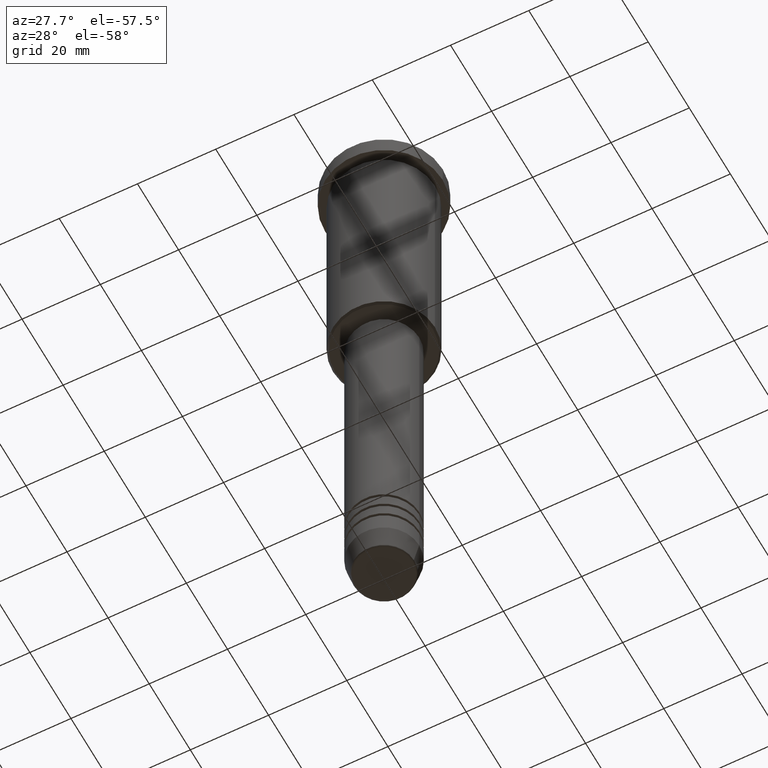
[diagram: clean part render]
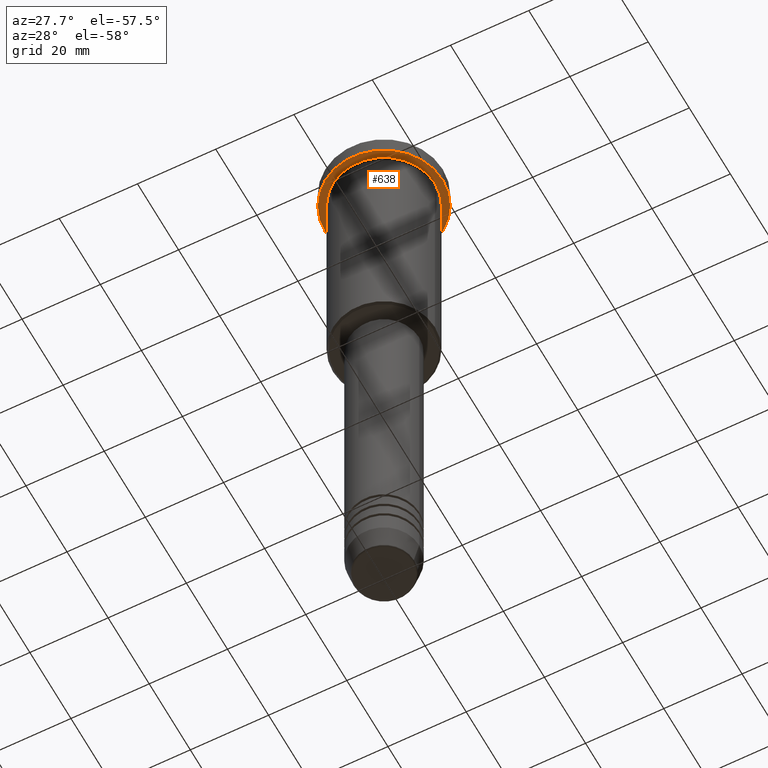
[diagram: same view with one face highlighted and labeled with its STEP entity id]
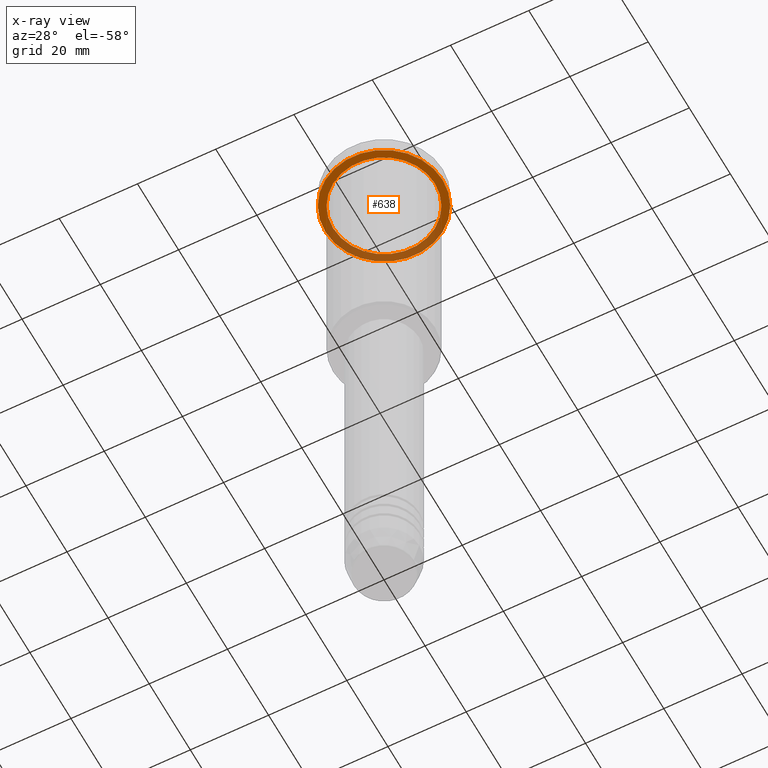
[diagram: x-ray of the same camera — body ghosted, the highlighted face saturated]
A machine part, auxiliary view. The second image highlights one B-rep face of the part: STEP entity #638.
The next image is the same camera in x-ray: the body ghosted, the highlighted face saturated — about 36% of this face is hidden behind the body in this view.
In plain terms, the highlighted planar face has unit normal (0, 0, -1).
Its self-contained STEP definition (entity closure, byte-faithful):
#16 = AXIS2_PLACEMENT_3D ( 'NONE', #723, #740, #835 ) ;
#55 = ORIENTED_EDGE ( 'NONE', *, *, #178, .T. ) ;
#88 = VERTEX_POINT ( 'NONE', #958 ) ;
#134 = AXIS2_PLACEMENT_3D ( 'NONE', #437, #1148, #336 ) ;
#139 = EDGE_CURVE ( 'NONE', #88, #1156, #384, .T. ) ;
#178 = EDGE_CURVE ( 'NONE', #206, #900, #881, .T. ) ;
#204 = CARTESIAN_POINT ( 'NONE',  ( -15.00000000000000000, 1.836970198721029589E-15, -4.999999999999999112 ) ) ;
#206 = VERTEX_POINT ( 'NONE', #457 ) ;
#248 = CARTESIAN_POINT ( 'NONE',  ( -13.00000000000000000, 0.000000000000000000, -4.999999999999999112 ) ) ;
#278 = EDGE_LOOP ( 'NONE', ( #670, #55 ) ) ;
#313 = AXIS2_PLACEMENT_3D ( 'NONE', #475, #557, #847 ) ;
#329 = AXIS2_PLACEMENT_3D ( 'NONE', #618, #1163, #519 ) ;
#336 = DIRECTION ( 'NONE',  ( 1.000000000000000000, 0.000000000000000000, 0.000000000000000000 ) ) ;
#382 = FACE_BOUND ( 'NONE', #278, .T. ) ;
#384 = CIRCLE ( 'NONE', #546, 15.00000000000000000 ) ;
#401 = ORIENTED_EDGE ( 'NONE', *, *, #521, .F. ) ;
#437 = CARTESIAN_POINT ( 'NONE',  ( 0.000000000000000000, 0.000000000000000000, -4.999999999999999112 ) ) ;
#457 = CARTESIAN_POINT ( 'NONE',  ( 13.00000000000000000, 1.592040838891559095E-15, -4.999999999999999112 ) ) ;
#470 = CARTESIAN_POINT ( 'NONE',  ( 0.000000000000000000, 0.000000000000000000, -4.999999999999999112 ) ) ;
#475 = CARTESIAN_POINT ( 'NONE',  ( 0.000000000000000000, 15.00000000000000000, -4.999999999999999112 ) ) ;
#519 = DIRECTION ( 'NONE',  ( -1.000000000000000000, 0.000000000000000000, 0.000000000000000000 ) ) ;
#521 = EDGE_CURVE ( 'NONE', #1156, #88, #1182, .T. ) ;
#546 = AXIS2_PLACEMENT_3D ( 'NONE', #470, #987, #1179 ) ;
#557 = DIRECTION ( 'NONE',  ( 0.000000000000000000, 0.000000000000000000, -1.000000000000000000 ) ) ;
#564 = ORIENTED_EDGE ( 'NONE', *, *, #139, .F. ) ;
#575 = FACE_OUTER_BOUND ( 'NONE', #784, .T. ) ;
#618 = CARTESIAN_POINT ( 'NONE',  ( 0.000000000000000000, 0.000000000000000000, -4.999999999999999112 ) ) ;
#638 = ADVANCED_FACE ( 'NONE', ( #382, #575 ), #838, .T. ) ;
#670 = ORIENTED_EDGE ( 'NONE', *, *, #897, .T. ) ;
#712 = CIRCLE ( 'NONE', #329, 13.00000000000000000 ) ;
#723 = CARTESIAN_POINT ( 'NONE',  ( 0.000000000000000000, 0.000000000000000000, -4.999999999999999112 ) ) ;
#740 = DIRECTION ( 'NONE',  ( -0.000000000000000000, -0.000000000000000000, 1.000000000000000000 ) ) ;
#784 = EDGE_LOOP ( 'NONE', ( #564, #401 ) ) ;
#835 = DIRECTION ( 'NONE',  ( -1.000000000000000000, 0.000000000000000000, 0.000000000000000000 ) ) ;
#838 = PLANE ( 'NONE',  #313 ) ;
#847 = DIRECTION ( 'NONE',  ( -1.000000000000000000, 0.000000000000000000, -0.000000000000000000 ) ) ;
#881 = CIRCLE ( 'NONE', #16, 13.00000000000000000 ) ;
#897 = EDGE_CURVE ( 'NONE', #900, #206, #712, .T. ) ;
#900 = VERTEX_POINT ( 'NONE', #248 ) ;
#958 = CARTESIAN_POINT ( 'NONE',  ( 15.00000000000000000, 0.000000000000000000, -4.999999999999999112 ) ) ;
#987 = DIRECTION ( 'NONE',  ( -0.000000000000000000, -0.000000000000000000, 1.000000000000000000 ) ) ;
#1148 = DIRECTION ( 'NONE',  ( -0.000000000000000000, -0.000000000000000000, 1.000000000000000000 ) ) ;
#1156 = VERTEX_POINT ( 'NONE', #204 ) ;
#1163 = DIRECTION ( 'NONE',  ( -0.000000000000000000, -0.000000000000000000, 1.000000000000000000 ) ) ;
#1179 = DIRECTION ( 'NONE',  ( 1.000000000000000000, 0.000000000000000000, 0.000000000000000000 ) ) ;
#1182 = CIRCLE ( 'NONE', #134, 15.00000000000000000 ) ;